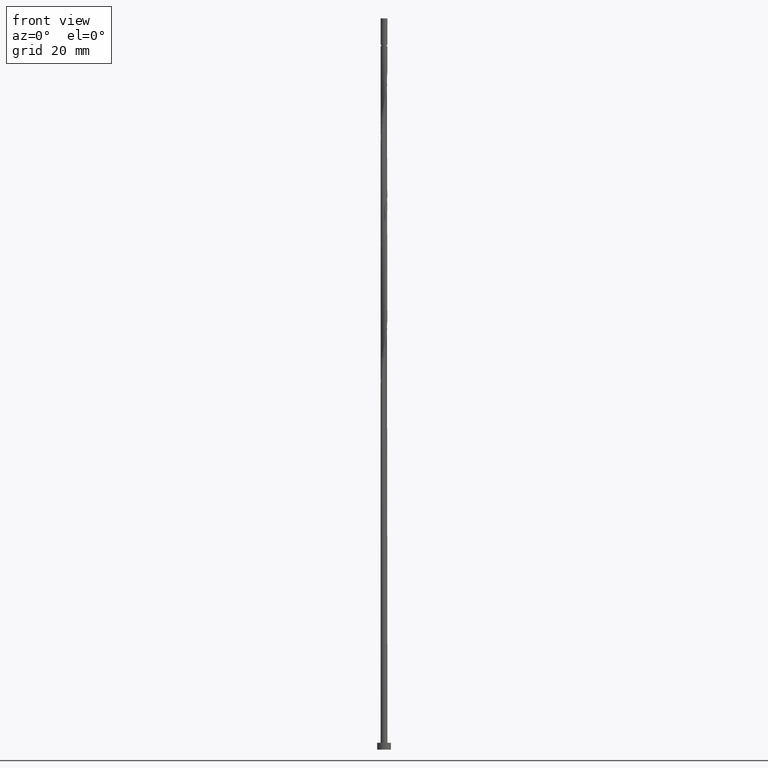
[diagram: clean part render]
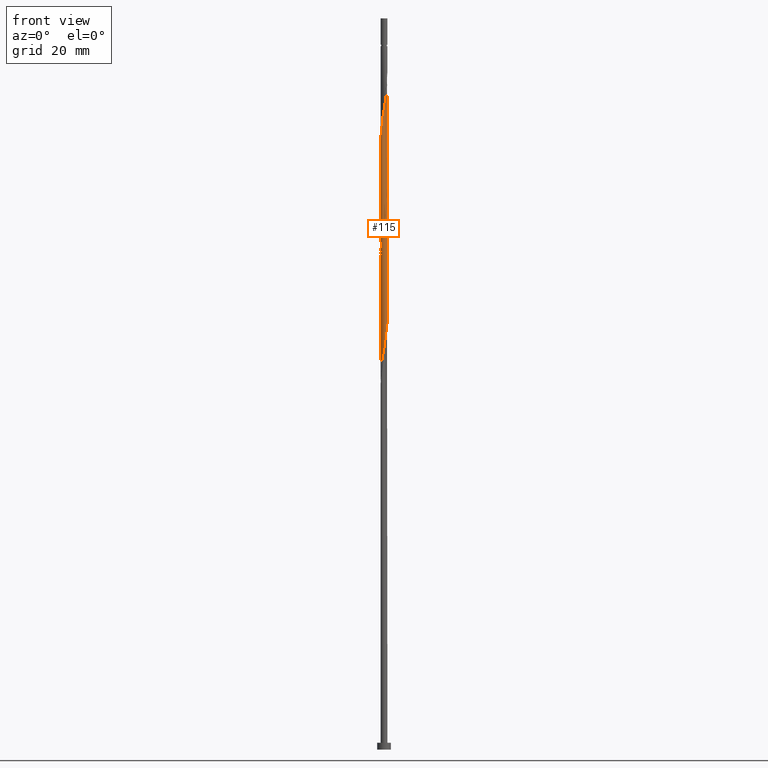
[diagram: same view with one face highlighted and labeled with its STEP entity id]
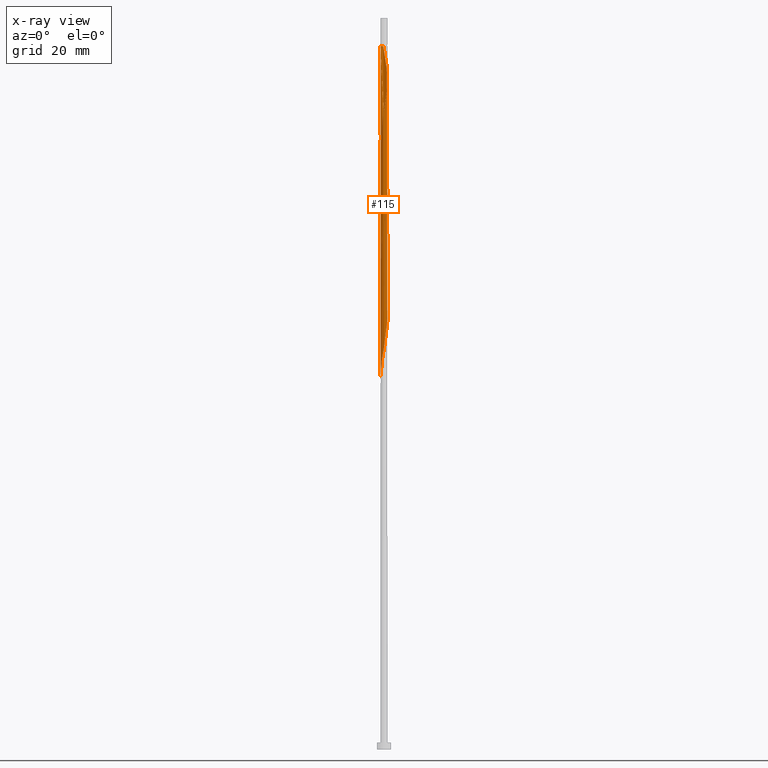
[diagram: x-ray of the same camera — body ghosted, the highlighted face saturated]
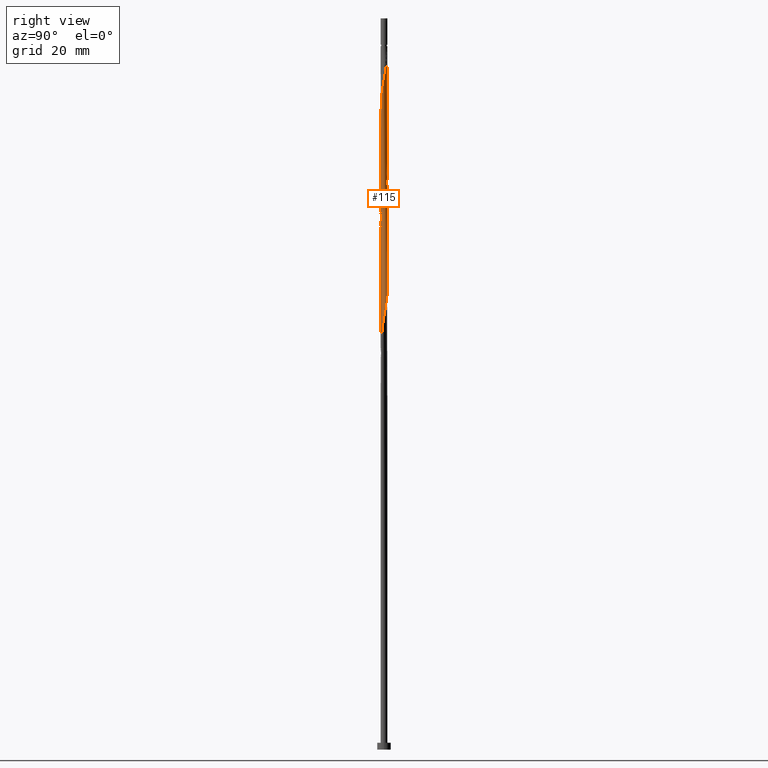
[diagram: same view with one face highlighted and labeled with its STEP entity id]
A machine part, front view. The second image highlights one B-rep face of the part: STEP entity #115.
The next image is the same camera in x-ray: the body ghosted, the highlighted face saturated — about 0% of this face is hidden behind the body in this view.
A second angle (right view) of the same face is appended — the face is thin or edge-on in the first view.
In plain terms, the highlighted cylindrical surface (bore or boss wall) has radius 0.75 mm, axis along (-0, -0, -1).
Its self-contained STEP definition (entity closure, byte-faithful):
#25 = CARTESIAN_POINT ( 'NONE',  ( -0.04357106947968836935, -0.7564586394380443668, 114.5398897957270492 ) ) ;
#37 = CARTESIAN_POINT ( 'NONE',  ( -0.4456267333261537678, -0.6128172042470102499, 85.44898070481796992 ) ) ;
#47 = CARTESIAN_POINT ( 'NONE',  ( 0.5431603122336537970, -0.5283038770350835245, 91.50958676542401804 ) ) ;
#49 = CARTESIAN_POINT ( 'NONE',  ( -0.6002262773101529891, -0.4624462426082151523, 110.9035261593634516 ) ) ;
#52 = CARTESIAN_POINT ( 'NONE',  ( -0.6699989052007818691, 0.3538779144080836936, 132.7217079775452078 ) ) ;
#58 = CARTESIAN_POINT ( 'NONE',  ( 0.6002262773101526561, 0.4624462426082153743, 97.57019282603009458 ) ) ;
#62 = CARTESIAN_POINT ( 'NONE',  ( 0.7305794244539265403, 0.1695691733911899868, 122.4186776745149672 ) ) ;
#71 = VERTEX_POINT ( 'NONE', #1050 ) ;
#72 = CARTESIAN_POINT ( 'NONE',  ( 0.4456267333261539343, 0.6128172042470102499, 125.4489807048179983 ) ) ;
#85 = ORIENTED_EDGE ( 'NONE', *, *, #408, .F. ) ;
#86 = CARTESIAN_POINT ( 'NONE',  ( 0.7549597909182493849, -0.06452771011537533630, 146.0550413108786358 ) ) ;
#94 = CARTESIAN_POINT ( 'NONE',  ( 0.1713128916150395142, 0.7380921381796140546, 152.1156473714846697 ) ) ;
#102 = CARTESIAN_POINT ( 'NONE',  ( -0.1492481155660134451, 0.7350000000001989386, 153.9338291896664259 ) ) ;
#109 = CARTESIAN_POINT ( 'NONE',  ( 0.4577392066508831348, 0.5941168392619601279, 150.2974655533028283 ) ) ;
#115 = ADVANCED_FACE ( 'NONE', ( #1276 ), #856, .T. ) ;
#118 = CARTESIAN_POINT ( 'NONE',  ( 0.6002262773101529891, -0.4624462426082153743, 143.6307988866361995 ) ) ;
#133 = CARTESIAN_POINT ( 'NONE',  ( 0.7500000000000013323, -0.02158164489286573673, 121.3278523309158032 ) ) ;
#136 = CARTESIAN_POINT ( 'NONE',  ( 0.7062785383531198224, -0.2523303910784088777, 93.32776858360585948 ) ) ;
#149 = DIRECTION ( 'NONE',  ( -0.000000000000000000, -0.000000000000000000, -1.000000000000000000 ) ) ;
#154 = CARTESIAN_POINT ( 'NONE',  ( 0.1713128916150395975, -0.7380921381796138325, 115.7520110078482958 ) ) ;
#163 = CARTESIAN_POINT ( 'NONE',  ( 0.2549251616522994479, 0.7135413605619579380, 126.6611019169391597 ) ) ;
#168 = CARTESIAN_POINT ( 'NONE',  ( 0.7487589812118536914, -0.04312757881667948767, 94.53988979572710605 ) ) ;
#174 = CARTESIAN_POINT ( 'NONE',  ( -0.6532126676498779538, -0.3685284396376102278, 110.2974655533028283 ) ) ;
#178 = VERTEX_POINT ( 'NONE', #400 ) ;
#188 = AXIS2_PLACEMENT_3D ( 'NONE', #319, #1264, #802 ) ;
#194 = CARTESIAN_POINT ( 'NONE',  ( -0.2718154963415760905, 0.6990109698342255040, 129.6914049472422334 ) ) ;
#208 = ORIENTED_EDGE ( 'NONE', *, *, #1078, .F. ) ;
#229 = CARTESIAN_POINT ( 'NONE',  ( 0.7305794244539263183, -0.1695691733911902643, 145.4489807048179557 ) ) ;
#246 = DIRECTION ( 'NONE',  ( -0.000000000000000000, -0.000000000000000000, -1.000000000000000000 ) ) ;
#248 = CARTESIAN_POINT ( 'NONE',  ( 0.7500000000000012212, 8.188859335163998688E-16, 121.4499503356340284 ) ) ;
#253 = CARTESIAN_POINT ( 'NONE',  ( 0.6065796087172179440, -0.4410908957215836090, 118.7823140381513412 ) ) ;
#258 = CARTESIAN_POINT ( 'NONE',  ( -0.6002262773101529891, -0.4624462426082151523, 84.23685949269678019 ) ) ;
#264 = CARTESIAN_POINT ( 'NONE',  ( 0.7062785383531198224, -0.2523303910784088777, 119.9944352502725309 ) ) ;
#268 = CARTESIAN_POINT ( 'NONE',  ( -0.04357106947968836935, -0.7564586394380443668, 87.87322312906040622 ) ) ;
#275 = CARTESIAN_POINT ( 'NONE',  ( -0.1492481155660134728, 0.7350000000001989386, 153.9338291896664259 ) ) ;
#286 = CARTESIAN_POINT ( 'NONE',  ( -0.2718154963415760905, 0.6990109698342255040, 103.0247382805755905 ) ) ;
#296 = CARTESIAN_POINT ( 'NONE',  ( -0.7549597909182494959, -0.06452771011537533630, 108.4792837351210011 ) ) ;
#319 = CARTESIAN_POINT ( 'NONE',  ( 0.000000000000000000, 0.000000000000000000, 153.9338291896664828 ) ) ;
#328 = CARTESIAN_POINT ( 'NONE',  ( -0.4577392066508833013, -0.5941168392619599059, 136.9641322199695139 ) ) ;
#337 = CARTESIAN_POINT ( 'NONE',  ( 0.7425581715054576648, 0.1507828677487336733, 147.2671625229998256 ) ) ;
#372 = CARTESIAN_POINT ( 'NONE',  ( 0.000000000000000000, 0.000000000000000000, 160.0000000000000000 ) ) ;
#386 = CARTESIAN_POINT ( 'NONE',  ( -0.7500000000000001110, 0.000000000000000000, 160.0000000000000000 ) ) ;
#400 = CARTESIAN_POINT ( 'NONE',  ( -0.7499999999999933387, 0.000000000000000000, 153.9338291896664828 ) ) ;
#406 = CARTESIAN_POINT ( 'NONE',  ( 0.6699989052007818691, -0.3538779144080835826, 92.72170797754523619 ) ) ;
#408 = EDGE_CURVE ( 'NONE', #562, #903, #1022, .T. ) ;
#410 = CARTESIAN_POINT ( 'NONE',  ( -0.7061990579896030296, -0.2746106366670052479, 109.6914049472422050 ) ) ;
#417 = CARTESIAN_POINT ( 'NONE',  ( 0.7305794244539265403, 0.1695691733911899868, 95.75201100784829578 ) ) ;
#422 = CARTESIAN_POINT ( 'NONE',  ( 0.6532126676498778428, 0.3685284396376105609, 123.6307988866361711 ) ) ;
#426 = CARTESIAN_POINT ( 'NONE',  ( -0.06387091106767565918, 0.7472753888088292662, 101.8126170684543723 ) ) ;
#433 = CARTESIAN_POINT ( 'NONE',  ( -0.7062785383531198224, 0.2523303910784087667, 133.3277685836058595 ) ) ;
#439 = CARTESIAN_POINT ( 'NONE',  ( -0.7487589812118533583, -0.04312757881667928644, 133.3277685836058595 ) ) ;
#448 = CARTESIAN_POINT ( 'NONE',  ( 0.4456267333261540453, -0.6128172042470101388, 142.4186776745149530 ) ) ;
#453 = CARTESIAN_POINT ( 'NONE',  ( 0.1492481155659936554, -0.7350000000000009859, 140.6004958563331400 ) ) ;
#498 = ORIENTED_EDGE ( 'NONE', *, *, #1250, .T. ) ;
#504 = CARTESIAN_POINT ( 'NONE',  ( -0.1492481155659938497, -0.7350000000000013189, 113.9338291896664828 ) ) ;
#513 = LINE ( 'NONE', #386, #945 ) ;
#515 = CARTESIAN_POINT ( 'NONE',  ( 0.06387091106767539550, -0.7472753888088292662, 88.47928373512102951 ) ) ;
#518 = CARTESIAN_POINT ( 'NONE',  ( 0.4456267333261539343, 0.6128172042470102499, 98.78231403815131273 ) ) ;
#527 = CARTESIAN_POINT ( 'NONE',  ( -0.3723181010681128611, 0.6599298014888365094, 103.6307988866361711 ) ) ;
#530 = EDGE_LOOP ( 'NONE', ( #1034, #1018, #1285, #1446, #85, #714, #498, #208 ) ) ;
#531 = CARTESIAN_POINT ( 'NONE',  ( -0.4577392066508833568, 0.5941168392619602390, 130.9035261593634232 ) ) ;
#533 = CARTESIAN_POINT ( 'NONE',  ( -0.7062785383531198224, 0.2523303910784087667, 106.6611019169392023 ) ) ;
#541 = CARTESIAN_POINT ( 'NONE',  ( 0.6002262773101526561, 0.4624462426082153743, 124.2368594926967944 ) ) ;
#548 = CARTESIAN_POINT ( 'NONE',  ( -0.7500000000000011102, 1.869602587936987035E-17, 133.0843747103655801 ) ) ;
#562 = VERTEX_POINT ( 'NONE', #248 ) ;
#573 = CARTESIAN_POINT ( 'NONE',  ( -0.04357106947968913957, 0.7564586394380442558, 153.3277685836058595 ) ) ;
#582 = CARTESIAN_POINT ( 'NONE',  ( 0.2718154963415759240, 0.6990109698342252820, 151.5095867654240749 ) ) ;
#597 = CARTESIAN_POINT ( 'NONE',  ( -0.7500000000000011102, 1.869602587936987035E-17, 133.0843747103655801 ) ) ;
#610 = CARTESIAN_POINT ( 'NONE',  ( 0.3723181010681128056, -0.6599298014888367314, 90.29746555330282831 ) ) ;
#624 = CARTESIAN_POINT ( 'NONE',  ( 0.7425581715054577758, -0.1507828677487339508, 120.6004958563331257 ) ) ;
#645 = CARTESIAN_POINT ( 'NONE',  ( -0.7500000000000011102, -0.02158164489286572285, 133.2064727150837768 ) ) ;
#647 = CARTESIAN_POINT ( 'NONE',  ( 0.4577392066508832458, -0.5941168392619602390, 90.90352615936343739 ) ) ;
#649 = CARTESIAN_POINT ( 'NONE',  ( 0.7549597909182494959, 0.06452771011537504486, 95.14595040178768670 ) ) ;
#653 = CARTESIAN_POINT ( 'NONE',  ( -0.7500000000000012212, 4.860966728636163332E-17, 134.7832836689673286 ) ) ;
#656 = CARTESIAN_POINT ( 'NONE',  ( 0.7500000000000001110, 9.184850993605150903E-17, 153.9338291896664828 ) ) ;
#659 = CARTESIAN_POINT ( 'NONE',  ( -0.7305794244539263183, -0.1695691733911902921, 109.0853443411816386 ) ) ;
#676 = CARTESIAN_POINT ( 'NONE',  ( 0.7061990579896032516, 0.2746106366670049148, 123.0247382805755478 ) ) ;
#684 = VERTEX_POINT ( 'NONE', #656 ) ;
#708 = EDGE_CURVE ( 'NONE', #178, #71, #513, .T. ) ;
#714 = ORIENTED_EDGE ( 'NONE', *, *, #1250, .F. ) ;
#715 = CARTESIAN_POINT ( 'NONE',  ( 0.6699989052007818691, 0.3538779144080834160, 148.4792837351210153 ) ) ;
#721 = DIRECTION ( 'NONE',  ( -0.000000000000000000, -0.000000000000000000, -1.000000000000000000 ) ) ;
#727 = CARTESIAN_POINT ( 'NONE',  ( 0.7500000000000011102, 8.188859335163998688E-16, 121.4499503356340284 ) ) ;
#741 = CARTESIAN_POINT ( 'NONE',  ( 0.06387091106767539550, -0.7472753888088292662, 115.1459504017876867 ) ) ;
#751 = LINE ( 'NONE', #1437, #863 ) ;
#764 = CARTESIAN_POINT ( 'NONE',  ( 0.6065796087172179440, -0.4410908957215836090, 92.11564737148462712 ) ) ;
#769 = CARTESIAN_POINT ( 'NONE',  ( 0.04357106947968818200, 0.7564586394380442558, 101.2065564623937348 ) ) ;
#773 = CARTESIAN_POINT ( 'NONE',  ( -0.7500000000000012212, -9.983677819583506438E-16, 81.44995033563405684 ) ) ;
#779 = CARTESIAN_POINT ( 'NONE',  ( -0.7487589812118536914, 0.04312757881667938359, 107.8732231290604062 ) ) ;
#791 = CARTESIAN_POINT ( 'NONE',  ( -0.7425581715054576648, -0.1507828677487337565, 133.9338291896664828 ) ) ;
#798 = CARTESIAN_POINT ( 'NONE',  ( -0.6065796087172177220, 0.4410908957215835535, 132.1156473714846413 ) ) ;
#802 = DIRECTION ( 'NONE',  ( -1.000000000000000000, 0.000000000000000000, 0.000000000000000000 ) ) ;
#817 = CARTESIAN_POINT ( 'NONE',  ( 0.04357106947968816812, -0.7564586394380441448, 139.9944352502725735 ) ) ;
#833 = CARTESIAN_POINT ( 'NONE',  ( 0.3723181010681126391, 0.6599298014888367314, 150.9035261593634516 ) ) ;
#856 = CYLINDRICAL_SURFACE ( 'NONE', #1329, 0.7500000000000001110 ) ;
#858 = VERTEX_POINT ( 'NONE', #275 ) ;
#861 = CARTESIAN_POINT ( 'NONE',  ( 0.2718154963415760905, -0.6990109698342255040, 89.69140494724221924 ) ) ;
#863 = VECTOR ( 'NONE', #721, 1000.000000000000000 ) ;
#865 = CARTESIAN_POINT ( 'NONE',  ( -0.3502759474892266356, -0.6631792824044842050, 112.7217079775452646 ) ) ;
#877 = CARTESIAN_POINT ( 'NONE',  ( -0.3502759474892266356, -0.6631792824044842050, 86.05504131087862163 ) ) ;
#881 = CARTESIAN_POINT ( 'NONE',  ( -0.6699989052007818691, 0.3538779144080836936, 106.0550413108785790 ) ) ;
#888 = CARTESIAN_POINT ( 'NONE',  ( 0.7425581715054577758, -0.1507828677487339508, 93.93382918966644013 ) ) ;
#892 = CARTESIAN_POINT ( 'NONE',  ( 0.7500000000000007772, 0.08589669553884329845, 121.9359102886053279 ) ) ;
#897 = CARTESIAN_POINT ( 'NONE',  ( -0.7487589812118536914, 0.04312757881667938359, 134.5398897957270492 ) ) ;
#903 = VERTEX_POINT ( 'NONE', #773 ) ;
#904 = CARTESIAN_POINT ( 'NONE',  ( -0.5431603122336535749, 0.5283038770350836355, 131.5095867654240465 ) ) ;
#913 = CARTESIAN_POINT ( 'NONE',  ( -0.6699989052007818691, -0.3538779144080836381, 135.1459504017877009 ) ) ;
#921 = CARTESIAN_POINT ( 'NONE',  ( 0.6532126676498778428, -0.3685284396376103944, 144.2368594926967660 ) ) ;
#928 = CARTESIAN_POINT ( 'NONE',  ( 0.06387091106767570081, 0.7472753888088291552, 152.7217079775452362 ) ) ;
#935 = CARTESIAN_POINT ( 'NONE',  ( 0.6065796087172178330, 0.4410908957215833315, 149.0853443411816102 ) ) ;
#945 = VECTOR ( 'NONE', #149, 1000.000000000000000 ) ;
#951 = CARTESIAN_POINT ( 'NONE',  ( 0.7062785383531196004, 0.2523303910784085446, 147.8732231290603636 ) ) ;
#965 = CARTESIAN_POINT ( 'NONE',  ( 0.7487589812118536914, -0.04312757881667948767, 121.2065564623937490 ) ) ;
#968 = CARTESIAN_POINT ( 'NONE',  ( -0.1492481155659938497, -0.7350000000000013189, 87.26716252299981136 ) ) ;
#991 = CARTESIAN_POINT ( 'NONE',  ( -0.2549251616522993369, -0.7135413605619579380, 86.66110191693920228 ) ) ;
#995 = CARTESIAN_POINT ( 'NONE',  ( 0.6532126676498778428, 0.3685284396376105609, 96.96413221996951393 ) ) ;
#1002 = CARTESIAN_POINT ( 'NONE',  ( -0.1713128916150394865, 0.7380921381796138325, 102.4186776745149388 ) ) ;
#1006 = CARTESIAN_POINT ( 'NONE',  ( 0.1492481155659939052, 0.7350000000000013189, 127.2671625229997971 ) ) ;
#1009 = VECTOR ( 'NONE', #246, 1000.000000000000000 ) ;
#1010 = CARTESIAN_POINT ( 'NONE',  ( 0.1492481155659939052, 0.7350000000000013189, 100.6004958563331400 ) ) ;
#1018 = ORIENTED_EDGE ( 'NONE', *, *, #1068, .T. ) ;
#1022 =( BOUNDED_CURVE ( )  B_SPLINE_CURVE ( 2, ( #727, #133, #965, #624, #264, #1436, #253, #1095, #1203, #1340, #1089, #154, #741, #25, #504, #1453, #865, #1103, #1362, #49, #174, #410, #659, #296, #779, #1119, #533, #881, #1242, #1468, #1355, #527, #286, #1002, #426, #769, #1010, #1483, #1127, #518, #1475, #58, #995, #1234, #417, #649, #168, #888, #136, #406, #764, #47, #647, #610, #861, #1117, #515, #268, #968, #991, #877, #37, #1223, #258, #1449, #1465, #1351, #1230, #1320 ),
 .UNSPECIFIED., .F., .T. ) 
 B_SPLINE_CURVE_WITH_KNOTS ( ( 3, 2, 2, 2, 2, 2, 2, 2, 2, 2, 2, 2, 2, 2, 2, 2, 2, 2, 2, 2, 2, 2, 2, 2, 2, 2, 2, 2, 2, 2, 2, 2, 2, 2, 3 ),
 ( 0.5545252162417511066, 0.5568181818181817677, 0.5681818181818182323, 0.5795454545454545858, 0.5909090909090909394, 0.6022727272727272929, 0.6136363636363636465, 0.6250000000000000000, 0.6363636363636363535, 0.6477272727272727071, 0.6590909090909090606, 0.6704545454545454142, 0.6818181818181817677, 0.6931818181818182323, 0.7045454545454545858, 0.7159090909090909394, 0.7272727272727272929, 0.7386363636363636465, 0.7500000000000000000, 0.7613636363636363535, 0.7727272727272727071, 0.7840909090909090606, 0.7954545454545454142, 0.8068181818181817677, 0.8181818181818182323, 0.8295454545454545858, 0.8409090909090909394, 0.8522727272727272929, 0.8636363636363636465, 0.8750000000000000000, 0.8863636363636363535, 0.8977272727272727071, 0.9090909090909090606, 0.9204545454545454142, 0.9295252162417512176 ),
 .UNSPECIFIED. ) 
 CURVE ( )  GEOMETRIC_REPRESENTATION_ITEM ( )  RATIONAL_B_SPLINE_CURVE ( ( 0.9061101570135920991, 0.9072237824201743184, 0.9090909090909520263, 0.8998376744372540426, 0.9090909090909520263, 0.8998376744372540426, 0.9090909090909520263, 0.8998376744372540426, 0.9090909090909520263, 0.8998376744372540426, 0.9090909090909520263, 0.8998376744372540426, 0.9090909090909520263, 0.8998376744372540426, 0.9090909090909520263, 0.8998376744372540426, 0.9090909090909520263, 0.8998376744372540426, 0.9090909090909520263, 0.8998376744372540426, 0.9090909090909520263, 0.8998376744372540426, 0.9090909090909520263, 0.8998376744372540426, 0.9090909090909520263, 0.8998376744372540426, 0.9090909090909520263, 0.8998376744372540426, 0.9090909090909520263, 0.8998376744372540426, 0.9090909090909520263, 0.8998376744372540426, 0.9090909090909520263, 0.8998376744372540426, 0.9090909090909520263, 0.8998376744372540426, 0.9090909090909520263, 0.8998376744372540426, 0.9090909090909520263, 0.8998376744372540426, 0.9090909090909520263, 0.8998376744372540426, 0.9090909090909520263, 0.8998376744372540426, 0.9090909090909520263, 0.8998376744372540426, 0.9090909090909520263, 0.8998376744372540426, 0.9090909090909520263, 0.8998376744372540426, 0.9090909090909520263, 0.8998376744372540426, 0.9090909090909520263, 0.8998376744372540426, 0.9090909090909520263, 0.8998376744372540426, 0.9090909090909520263, 0.8998376744372540426, 0.9090909090909520263, 0.8998376744372540426, 0.9090909090909520263, 0.8998376744372540426, 0.9090909090909520263, 0.8998376744372540426, 0.9090909090909520263, 0.8998376744372540426, 0.9090909090909520263, 0.9017048011080316394, 0.9061101570135922101 ) ) 
 REPRESENTATION_ITEM ( '' )  );
#1027 = CARTESIAN_POINT ( 'NONE',  ( -0.7062785383531196004, -0.2523303910784086557, 134.5398897957270776 ) ) ;
#1034 = ORIENTED_EDGE ( 'NONE', *, *, #708, .F. ) ;
#1050 = CARTESIAN_POINT ( 'NONE',  ( -0.7500000000000012212, 4.860966728636163332E-17, 134.7832836689673286 ) ) ;
#1065 =( BOUNDED_CURVE ( )  B_SPLINE_CURVE ( 2, ( #653, #1487, #897, #1122, #433, #52, #798, #904, #531, #1246, #194, #1254, #1136, #1372, #1006, #163, #1479, #72, #1114, #541, #422, #676, #62, #892, #1129 ),
 .UNSPECIFIED., .F., .T. ) 
 B_SPLINE_CURVE_WITH_KNOTS ( ( 3, 2, 2, 2, 2, 2, 2, 2, 2, 2, 2, 2, 3 ),
 ( 0.4295252162417514952, 0.4318181818181818232, 0.4431818181818181768, 0.4545454545454545303, 0.4659090909090908839, 0.4772727272727272929, 0.4886363636363636465, 0.5000000000000000000, 0.5113636363636363535, 0.5227272727272727071, 0.5340909090909090606, 0.5454545454545454142, 0.5545252162417511066 ),
 .UNSPECIFIED. ) 
 CURVE ( )  GEOMETRIC_REPRESENTATION_ITEM ( )  RATIONAL_B_SPLINE_CURVE ( ( 0.9061101570135923211, 0.9072237824201745404, 0.9090909090909520263, 0.8998376744372540426, 0.9090909090909520263, 0.8998376744372540426, 0.9090909090909520263, 0.8998376744372540426, 0.9090909090909520263, 0.8998376744372540426, 0.9090909090909520263, 0.8998376744372540426, 0.9090909090909520263, 0.8998376744372540426, 0.9090909090909520263, 0.8998376744372540426, 0.9090909090909520263, 0.8998376744372540426, 0.9090909090909520263, 0.8998376744372540426, 0.9090909090909520263, 0.8998376744372540426, 0.9090909090909520263, 0.9017048011080317504, 0.9061101570135920991 ) ) 
 REPRESENTATION_ITEM ( '' )  );
#1068 = EDGE_CURVE ( 'NONE', #178, #858, #1083, .T. ) ;
#1078 = EDGE_CURVE ( 'NONE', #71, #562, #1065, .T. ) ;
#1083 = CIRCLE ( 'NONE', #188, 0.7499999999999933387 ) ;
#1089 = CARTESIAN_POINT ( 'NONE',  ( 0.2718154963415760905, -0.6990109698342255040, 116.3580716139088906 ) ) ;
#1095 = CARTESIAN_POINT ( 'NONE',  ( 0.5431603122336537970, -0.5283038770350835245, 118.1762534320906610 ) ) ;
#1103 = CARTESIAN_POINT ( 'NONE',  ( -0.4456267333261537678, -0.6128172042470102499, 112.1156473714846413 ) ) ;
#1114 = CARTESIAN_POINT ( 'NONE',  ( 0.5229265053181533229, 0.5376317234276127843, 124.8429200987574035 ) ) ;
#1117 = CARTESIAN_POINT ( 'NONE',  ( 0.1713128916150395975, -0.7380921381796138325, 89.08534434118161016 ) ) ;
#1119 = CARTESIAN_POINT ( 'NONE',  ( -0.7425581715054577758, 0.1507828677487338953, 107.2671625229998256 ) ) ;
#1122 = CARTESIAN_POINT ( 'NONE',  ( -0.7425581715054577758, 0.1507828677487338953, 133.9338291896664828 ) ) ;
#1127 = CARTESIAN_POINT ( 'NONE',  ( 0.3502759474892266911, 0.6631792824044842050, 99.38837464421193602 ) ) ;
#1129 = CARTESIAN_POINT ( 'NONE',  ( 0.7500000000000011102, 8.188859335163998688E-16, 121.4499503356340284 ) ) ;
#1136 = CARTESIAN_POINT ( 'NONE',  ( -0.06387091106767565918, 0.7472753888088292662, 128.4792837351210153 ) ) ;
#1141 = EDGE_CURVE ( 'NONE', #1295, #858, #1400, .T. ) ;
#1160 = CARTESIAN_POINT ( 'NONE',  ( 0.2549251616522991148, -0.7135413605619580490, 141.2065564623937064 ) ) ;
#1168 = CARTESIAN_POINT ( 'NONE',  ( -0.5431603122336535749, -0.5283038770350835245, 136.3580716139088622 ) ) ;
#1184 = CARTESIAN_POINT ( 'NONE',  ( 0.5431603122336540190, 0.5283038770350831914, 149.6914049472422334 ) ) ;
#1190 = EDGE_CURVE ( 'NONE', #1295, #903, #751, .T. ) ;
#1203 = CARTESIAN_POINT ( 'NONE',  ( 0.4577392066508832458, -0.5941168392619602390, 117.5701928260301230 ) ) ;
#1223 = CARTESIAN_POINT ( 'NONE',  ( -0.5229265053181534340, -0.5376317234276126733, 84.84292009875737506 ) ) ;
#1226 = DIRECTION ( 'NONE',  ( -1.000000000000000000, 0.000000000000000000, 0.000000000000000000 ) ) ;
#1230 = CARTESIAN_POINT ( 'NONE',  ( -0.7500000000000011102, -0.08589669553884256292, 81.93591028860532788 ) ) ;
#1234 = CARTESIAN_POINT ( 'NONE',  ( 0.7061990579896032516, 0.2746106366670049148, 96.35807161390889064 ) ) ;
#1242 = CARTESIAN_POINT ( 'NONE',  ( -0.6065796087172177220, 0.4410908957215835535, 105.4489807048179983 ) ) ;
#1246 = CARTESIAN_POINT ( 'NONE',  ( -0.3723181010681128611, 0.6599298014888365094, 130.2974655533028567 ) ) ;
#1250 = EDGE_CURVE ( 'NONE', #684, #562, #1433, .T. ) ;
#1254 = CARTESIAN_POINT ( 'NONE',  ( -0.1713128916150394865, 0.7380921381796138325, 129.0853443411816102 ) ) ;
#1264 = DIRECTION ( 'NONE',  ( -0.000000000000000000, -0.000000000000000000, -1.000000000000000000 ) ) ;
#1276 = FACE_OUTER_BOUND ( 'NONE', #530, .T. ) ;
#1285 = ORIENTED_EDGE ( 'NONE', *, *, #1141, .F. ) ;
#1295 = VERTEX_POINT ( 'NONE', #597 ) ;
#1296 = CARTESIAN_POINT ( 'NONE',  ( 0.5229265053181534340, -0.5376317234276126733, 143.0247382805755194 ) ) ;
#1304 = CARTESIAN_POINT ( 'NONE',  ( -0.2718154963415762571, -0.6990109698342252820, 138.1762534320907037 ) ) ;
#1312 = CARTESIAN_POINT ( 'NONE',  ( 0.7500000000000001110, 9.184850993605150903E-17, 160.0000000000000000 ) ) ;
#1320 = CARTESIAN_POINT ( 'NONE',  ( -0.7500000000000012212, -9.983677819583506438E-16, 81.44995033563405684 ) ) ;
#1329 = AXIS2_PLACEMENT_3D ( 'NONE', #372, #1444, #1226 ) ;
#1340 = CARTESIAN_POINT ( 'NONE',  ( 0.3723181010681128056, -0.6599298014888367314, 116.9641322199694713 ) ) ;
#1351 = CARTESIAN_POINT ( 'NONE',  ( -0.7305794244539263183, -0.1695691733911902921, 82.41867767451495297 ) ) ;
#1355 = CARTESIAN_POINT ( 'NONE',  ( -0.4577392066508833568, 0.5941168392619602390, 104.2368594926967944 ) ) ;
#1362 = CARTESIAN_POINT ( 'NONE',  ( -0.5229265053181534340, -0.5376317234276126733, 111.5095867654240465 ) ) ;
#1372 = CARTESIAN_POINT ( 'NONE',  ( 0.04357106947968818200, 0.7564586394380442558, 127.8732231290604062 ) ) ;
#1400 =( BOUNDED_CURVE ( )  B_SPLINE_CURVE ( 2, ( #548, #645, #439, #791, #1027, #913, #1503, #1168, #328, #1418, #1304, #1401, #1543, #817, #453, #1160, #1511, #448, #1296, #118, #921, #1425, #229, #86, #1524, #337, #951, #715, #935, #1184, #109, #833, #582, #94, #928, #573, #102 ),
 .UNSPECIFIED., .F., .T. ) 
 B_SPLINE_CURVE_WITH_KNOTS ( ( 3, 2, 2, 2, 2, 2, 2, 2, 2, 2, 2, 2, 2, 2, 2, 2, 2, 2, 3 ),
 ( 0.5545252162417512176, 0.5568181818181818787, 0.5681818181818181213, 0.5795454545454545858, 0.5909090909090908283, 0.6022727272727272929, 0.6136363636363636465, 0.6250000000000000000, 0.6363636363636363535, 0.6477272727272727071, 0.6590909090909091717, 0.6704545454545455252, 0.6818181818181819898, 0.6931818181818182323, 0.7045454545454546968, 0.7159090909090909394, 0.7272727272727274039, 0.7386363636363637575, 0.7500000000000001110 ),
 .UNSPECIFIED. ) 
 CURVE ( )  GEOMETRIC_REPRESENTATION_ITEM ( )  RATIONAL_B_SPLINE_CURVE ( ( 0.9061101570135916550, 0.9072237824201738743, 0.9090909090909515822, 0.8998376744372534874, 0.9090909090909515822, 0.8998376744372534874, 0.9090909090909515822, 0.8998376744372534874, 0.9090909090909515822, 0.8998376744372534874, 0.9090909090909515822, 0.8998376744372534874, 0.9090909090909515822, 0.8998376744372534874, 0.9090909090909515822, 0.8998376744372534874, 0.9090909090909515822, 0.8998376744372534874, 0.9090909090909515822, 0.8998376744372534874, 0.9090909090909515822, 0.8998376744372534874, 0.9090909090909515822, 0.8998376744372534874, 0.9090909090909515822, 0.8998376744372534874, 0.9090909090909515822, 0.8998376744372534874, 0.9090909090909515822, 0.8998376744372534874, 0.9090909090909515822, 0.8998376744372534874, 0.9090909090909515822, 0.8998376744372534874, 0.9090909090909515822, 0.8998376744372533764, 0.9090909090909516932 ) ) 
 REPRESENTATION_ITEM ( '' )  );
#1401 = CARTESIAN_POINT ( 'NONE',  ( -0.1713128916150394032, -0.7380921381796140546, 138.7823140381513554 ) ) ;
#1418 = CARTESIAN_POINT ( 'NONE',  ( -0.3723181010681130276, -0.6599298014888367314, 137.5701928260301088 ) ) ;
#1425 = CARTESIAN_POINT ( 'NONE',  ( 0.7061990579896032516, -0.2746106366670050813, 144.8429200987574461 ) ) ;
#1433 = LINE ( 'NONE', #1312, #1009 ) ;
#1436 = CARTESIAN_POINT ( 'NONE',  ( 0.6699989052007818691, -0.3538779144080835826, 119.3883746442119218 ) ) ;
#1437 = CARTESIAN_POINT ( 'NONE',  ( -0.7500000000000001110, 0.000000000000000000, 160.0000000000000000 ) ) ;
#1444 = DIRECTION ( 'NONE',  ( -0.000000000000000000, -0.000000000000000000, -1.000000000000000000 ) ) ;
#1446 = ORIENTED_EDGE ( 'NONE', *, *, #1190, .T. ) ;
#1449 = CARTESIAN_POINT ( 'NONE',  ( -0.6532126676498779538, -0.3685284396376102278, 83.63079888663615691 ) ) ;
#1453 = CARTESIAN_POINT ( 'NONE',  ( -0.2549251616522993369, -0.7135413605619579380, 113.3277685836058595 ) ) ;
#1465 = CARTESIAN_POINT ( 'NONE',  ( -0.7061990579896030296, -0.2746106366670052479, 83.02473828057554783 ) ) ;
#1468 = CARTESIAN_POINT ( 'NONE',  ( -0.5431603122336535749, 0.5283038770350836355, 104.8429200987574035 ) ) ;
#1475 = CARTESIAN_POINT ( 'NONE',  ( 0.5229265053181533229, 0.5376317234276127843, 98.17625343209073208 ) ) ;
#1479 = CARTESIAN_POINT ( 'NONE',  ( 0.3502759474892266911, 0.6631792824044842050, 126.0550413108785790 ) ) ;
#1483 = CARTESIAN_POINT ( 'NONE',  ( 0.2549251616522994479, 0.7135413605619579380, 99.99443525027251667 ) ) ;
#1487 = CARTESIAN_POINT ( 'NONE',  ( -0.7500000000000013323, 0.02158164489286873086, 134.6611856642491034 ) ) ;
#1503 = CARTESIAN_POINT ( 'NONE',  ( -0.6065796087172176110, -0.4410908957215836090, 135.7520110078482674 ) ) ;
#1511 = CARTESIAN_POINT ( 'NONE',  ( 0.3502759474892264135, -0.6631792824044840939, 141.8126170684543297 ) ) ;
#1524 = CARTESIAN_POINT ( 'NONE',  ( 0.7487589812118533583, 0.04312757881667920318, 146.6611019169392307 ) ) ;
#1543 = CARTESIAN_POINT ( 'NONE',  ( -0.06387091106767561755, -0.7472753888088291552, 139.3883746442119502 ) ) ;